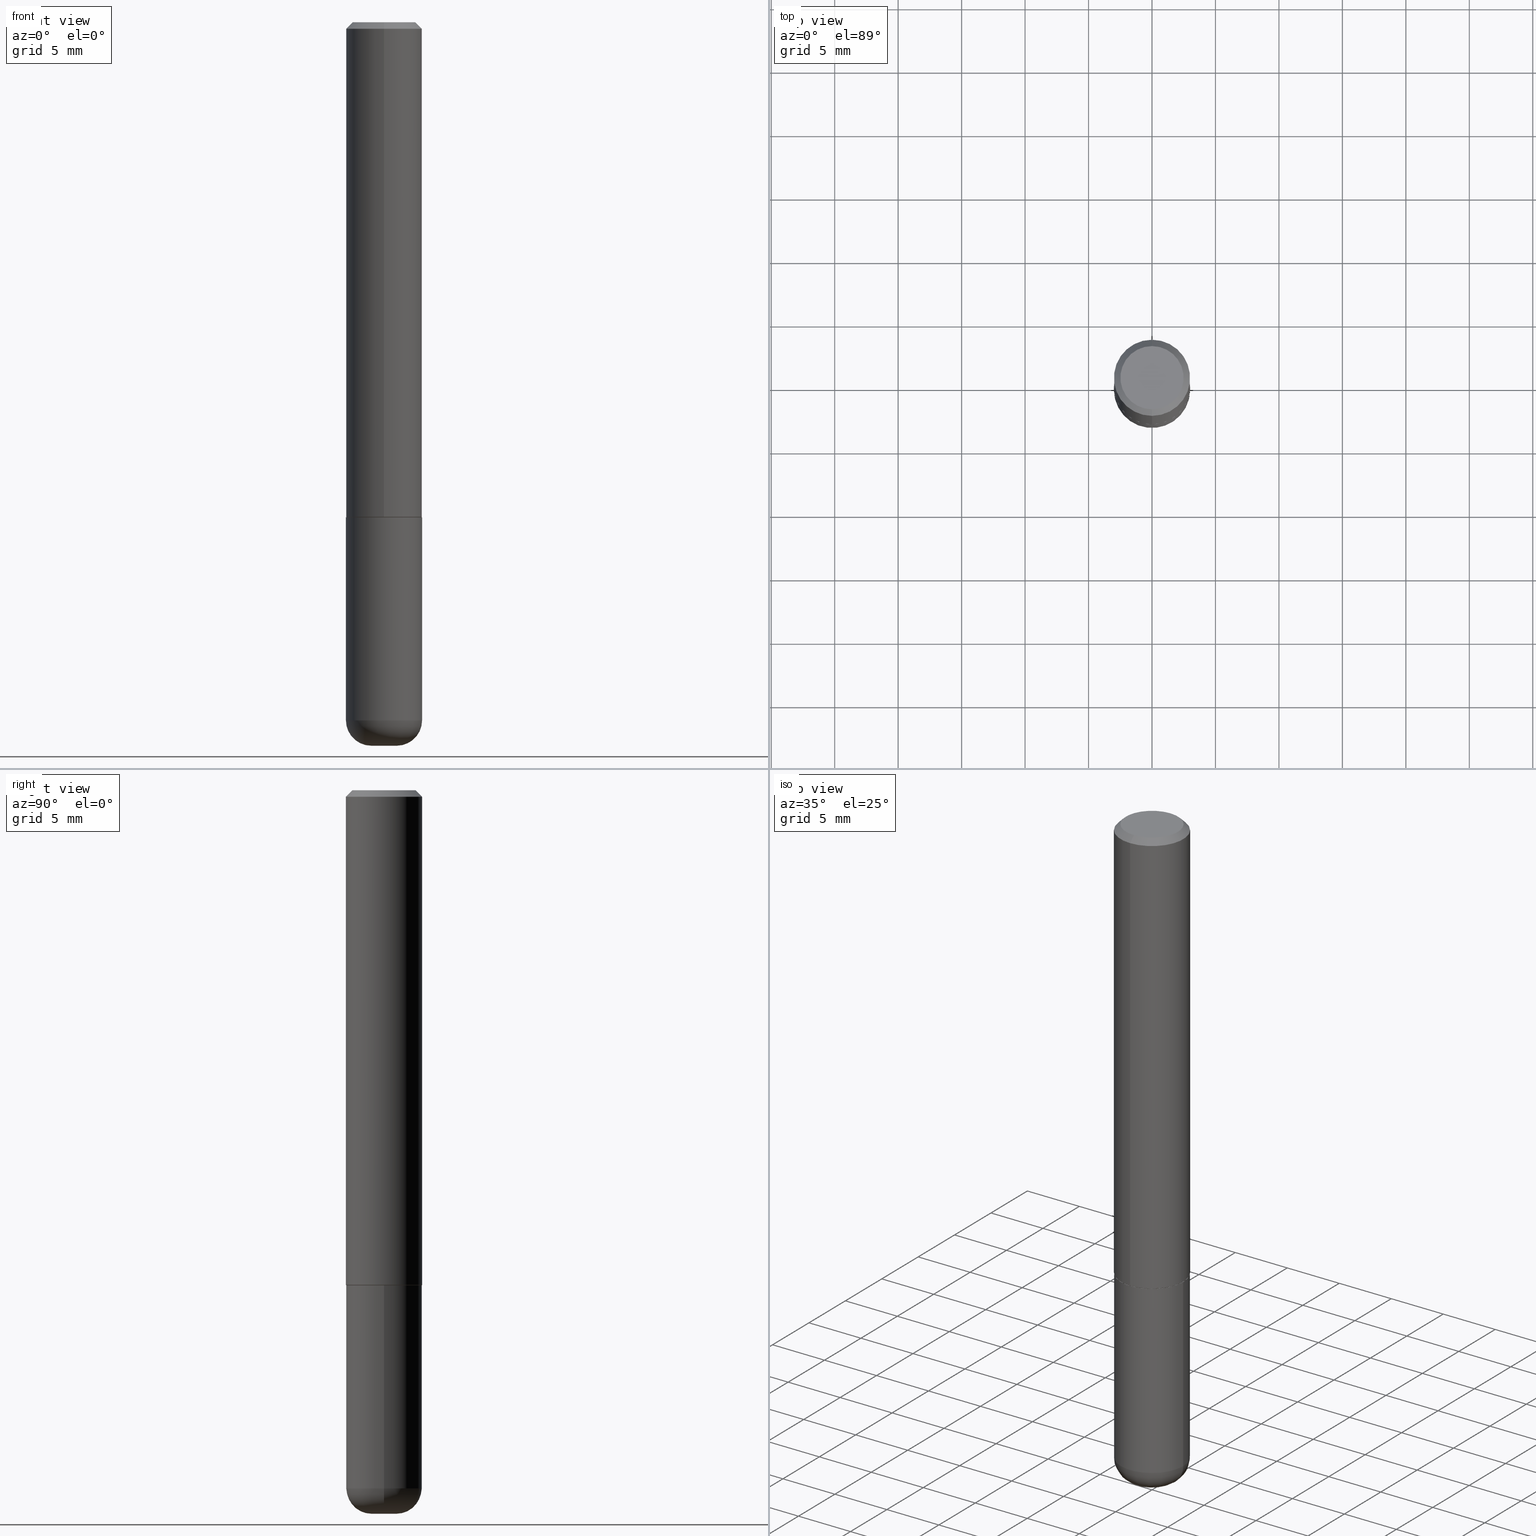
[diagram: canonical four-view strip — front | top / right | iso, engineering-drawing reading convention]
A machine part, canonical four-view strip (front | top / right | iso — engineering-drawing reading convention). The complete STEP part file that produces these views, byte-faithful:
ISO-10303-21;
HEADER;
FILE_DESCRIPTION (( 'STEP AP203' ),
    '1' );
FILE_NAME ('43475.STEP',
    '2024-03-04T04:51:33',
    ( '' ),
    ( '' ),
    'SwSTEP 2.0',
    'SolidWorks 2023',
    '' );
FILE_SCHEMA (( 'CONFIG_CONTROL_DESIGN' ));
ENDSEC;

DATA;
#1 = AXIS2_PLACEMENT_3D ( 'NONE', #17, #213, #9 ) ;
#2 = DIRECTION ( 'NONE',  ( -2.450009258804836628E-29, 3.484979152265221027E-15, 1.000000000000000000 ) ) ;
#3 = PERSON_AND_ORGANIZATION ( #193, #204 ) ;
#4 = CIRCLE ( 'NONE', #394, 0.1181000000000001493 ) ;
#5 = ADVANCED_FACE ( 'NONE', ( #255 ), #181, .F. ) ;
#6 = ORIENTED_EDGE ( 'NONE', *, *, #378, .F. ) ;
#7 = ADVANCED_FACE ( 'NONE', ( #79 ), #166, .T. ) ;
#8 = ORIENTED_EDGE ( 'NONE', *, *, #129, .T. ) ;
#9 = DIRECTION ( 'NONE',  ( -6.982962677686265922E-15, -1.000000000000000000, 3.484979152265221421E-15 ) ) ;
#10 = ORIENTED_EDGE ( 'NONE', *, *, #135, .F. ) ;
#11 = APPLICATION_PROTOCOL_DEFINITION ( 'international standard', 'config_control_design', 1994, #352 ) ;
#12 = APPROVAL_ROLE ( '' ) ;
#13 = CARTESIAN_POINT ( 'NONE',  ( 8.391509709326786901E-16, 0.1181000000000000660, -4.115760378825227923E-16 ) ) ;
#14 = VECTOR ( 'NONE', #195, 39.37007874015748143 ) ;
#15 = VERTEX_POINT ( 'NONE', #251 ) ;
#16 = ADVANCED_FACE ( 'NONE', ( #221 ), #214, .F. ) ;
#17 = CARTESIAN_POINT ( 'NONE',  ( 3.761744215968946405E-29, -5.350836990388019914E-15, -1.535399999999999876 ) ) ;
#18 = EDGE_LOOP ( 'NONE', ( #48, #316 ) ) ;
#19 = DIRECTION ( 'NONE',  ( 6.982962677686265922E-15, 1.000000000000000000, -3.469747663417777397E-15 ) ) ;
#20 = ORIENTED_EDGE ( 'NONE', *, *, #139, .F. ) ;
#21 = CARTESIAN_POINT ( 'NONE',  ( 8.320455435751148570E-16, 0.1170999999999946667, -1.535400000000000320 ) ) ;
#22 = EDGE_CURVE ( 'NONE', #313, #379, #172, .T. ) ;
#23 = TOROIDAL_SURFACE ( 'NONE', #100, 0.03939999999999999752, 0.07869999999999995055 ) ;
#24 = FACE_OUTER_BOUND ( 'NONE', #347, .T. ) ;
#25 = DIRECTION ( 'NONE',  ( 1.000000000000000000, -6.982962677686265133E-15, 0.000000000000000000 ) ) ;
#26 = CARTESIAN_POINT ( 'NONE',  ( 3.761744215968946405E-29, -5.350836990388019914E-15, -1.535399999999999876 ) ) ;
#27 = EDGE_CURVE ( 'NONE', #355, #411, #174, .T. ) ;
#28 = LINE ( 'NONE', #359, #249 ) ;
#29 = ADVANCED_BREP_SHAPE_REPRESENTATION ( '43475', ( #162, #301, #330 ), #186 ) ;
#30 = AXIS2_PLACEMENT_3D ( 'NONE', #343, #178, #47 ) ;
#31 = DIRECTION ( 'NONE',  ( 1.000000000000000000, -6.982962677686262766E-15, 0.000000000000000000 ) ) ;
#32 = COORDINATED_UNIVERSAL_TIME_OFFSET ( 5, 0, .BEHIND. ) ;
#33 = CALENDAR_DATE ( 2024, 3, 3 ) ;
#34 =( NAMED_UNIT ( * ) PLANE_ANGLE_UNIT ( ) SI_UNIT ( $, .RADIAN. ) );
#35 = ADVANCED_FACE ( 'NONE', ( #307 ), #228, .T. ) ;
#36 = CIRCLE ( 'NONE', #41, 0.1181000000000001493 ) ;
#37 = PRODUCT_DEFINITION_FORMATION_WITH_SPECIFIED_SOURCE ( 'ANY', '', #363, .NOT_KNOWN. ) ;
#38 = PERSON_AND_ORGANIZATION_ROLE ( 'design_supplier' ) ;
#39 = PLANE ( 'NONE',  #278 ) ;
#40 = COORDINATED_UNIVERSAL_TIME_OFFSET ( 5, 0, .BEHIND. ) ;
#41 = AXIS2_PLACEMENT_3D ( 'NONE', #151, #386, #225 ) ;
#42 = CARTESIAN_POINT ( 'NONE',  ( 3.761744215968946405E-29, -5.350836990388019914E-15, -1.535399999999999876 ) ) ;
#43 = CONICAL_SURFACE ( 'NONE', #293, 0.1171000000000000096, 0.7853981633974824739 ) ;
#44 = FACE_OUTER_BOUND ( 'NONE', #188, .T. ) ;
#45 = COORDINATED_UNIVERSAL_TIME_OFFSET ( 5, 0, .BEHIND. ) ;
#46 = DIRECTION ( 'NONE',  ( 6.982962677686265922E-15, 1.000000000000000000, -3.469747663417777397E-15 ) ) ;
#47 = DIRECTION ( 'NONE',  ( -1.000000000000000000, 6.982962677686265922E-15, -4.876176775795935793E-29 ) ) ;
#48 = ORIENTED_EDGE ( 'NONE', *, *, #378, .T. ) ;
#49 = ADVANCED_FACE ( 'NONE', ( #281 ), #285, .F. ) ;
#50 = CARTESIAN_POINT ( 'NONE',  ( 5.487876547960064752E-29, -7.835233272497902340E-15, -2.244099999999999984 ) ) ;
#51 = AXIS2_PLACEMENT_3D ( 'NONE', #86, #56, #264 ) ;
#52 = APPROVAL_PERSON_ORGANIZATION ( #3, #275, #130 ) ;
#53 = FACE_OUTER_BOUND ( 'NONE', #104, .T. ) ;
#54 = FACE_OUTER_BOUND ( 'NONE', #402, .T. ) ;
#55 = CC_DESIGN_PERSON_AND_ORGANIZATION_ASSIGNMENT ( #115, #382, ( #363 ) ) ;
#56 = DIRECTION ( 'NONE',  ( -2.450009258804836628E-29, 3.484979152265221027E-15, 1.000000000000000000 ) ) ;
#57 = VERTEX_POINT ( 'NONE', #70 ) ;
#58 = VECTOR ( 'NONE', #183, 39.37007874015748143 ) ;
#59 = VECTOR ( 'NONE', #168, 39.37007874015748143 ) ;
#60 = FACE_OUTER_BOUND ( 'NONE', #408, .T. ) ;
#61 = ORIENTED_EDGE ( 'NONE', *, *, #332, .F. ) ;
#62 = CYLINDRICAL_SURFACE ( 'NONE', #220, 0.1181000000000000105 ) ;
#63 = CARTESIAN_POINT ( 'NONE',  ( 8.172785934604017576E-45, -1.162525753552274938E-30, -3.335818387311265061E-16 ) ) ;
#64 = FACE_OUTER_BOUND ( 'NONE', #230, .T. ) ;
#65 = DIRECTION ( 'NONE',  ( 2.450009258804836628E-29, -3.484979152265221027E-15, -1.000000000000000000 ) ) ;
#66 = EDGE_CURVE ( 'NONE', #215, #137, #217, .T. ) ;
#67 = DATE_TIME_ROLE ( 'creation_date' ) ;
#68 = CIRCLE ( 'NONE', #415, 0.1181000000000000383 ) ;
#69 = COORDINATED_UNIVERSAL_TIME_OFFSET ( 5, 0, .BEHIND. ) ;
#70 = CARTESIAN_POINT ( 'NONE',  ( 0.1180999999999999689, -8.385141583365694108E-15, -2.165399999999999991 ) ) ;
#71 = VERTEX_POINT ( 'NONE', #346 ) ;
#72 = LOCAL_TIME ( 23, 51, 33.00000000000000000, #69 ) ;
#73 = ORIENTED_EDGE ( 'NONE', *, *, #348, .T. ) ;
#74 = ORIENTED_EDGE ( 'NONE', *, *, #284, .T. ) ;
#75 = ORIENTED_EDGE ( 'NONE', *, *, #150, .T. ) ;
#76 = DIRECTION ( 'NONE',  ( 2.450009258804836067E-29, -3.484979152265221421E-15, -1.000000000000000000 ) ) ;
#77 = ORIENTED_EDGE ( 'NONE', *, *, #361, .F. ) ;
#78 = CARTESIAN_POINT ( 'NONE',  ( 3.754772805016658760E-29, -5.360820447659765363E-15, -1.535399999999999876 ) ) ;
#79 = FACE_OUTER_BOUND ( 'NONE', #211, .T. ) ;
#80 = AXIS2_PLACEMENT_3D ( 'NONE', #26, #157, #91 ) ;
#81 = ORIENTED_EDGE ( 'NONE', *, *, #260, .T. ) ;
#82 = CONICAL_SURFACE ( 'NONE', #250, 0.1180999999999999966, 0.7853981633974463916 ) ;
#83 = EDGE_CURVE ( 'NONE', #15, #223, #292, .T. ) ;
#84 = APPROVAL_STATUS ( 'not_yet_approved' ) ;
#85 = DIRECTION ( 'NONE',  ( -6.982962677686265922E-15, -1.000000000000000000, 3.484979152265220632E-15 ) ) ;
#86 = CARTESIAN_POINT ( 'NONE',  ( 4.900018517609688844E-31, -6.969958304530464142E-17, -0.02000000000000006287 ) ) ;
#87 = EDGE_LOOP ( 'NONE', ( #110, #106 ) ) ;
#88 = VECTOR ( 'NONE', #243, 39.37007874015748854 ) ;
#89 = APPROVAL_PERSON_ORGANIZATION ( #254, #96, #404 ) ;
#90 = CARTESIAN_POINT ( 'NONE',  ( 0.000000000000000000, 0.000000000000000000, 0.000000000000000000 ) ) ;
#91 = DIRECTION ( 'NONE',  ( -6.982962677686266711E-15, -1.000000000000000000, 2.332918867347790727E-15 ) ) ;
#92 = CYLINDRICAL_SURFACE ( 'NONE', #322, 0.1181000000000000105 ) ;
#93 = DIRECTION ( 'NONE',  ( 1.000000000000000000, -6.982962677686261977E-15, 0.000000000000000000 ) ) ;
#94 = CARTESIAN_POINT ( 'NONE',  ( 5.295418152913295466E-29, -7.560453691130947423E-15, -2.165399999999999991 ) ) ;
#95 = AXIS2_PLACEMENT_3D ( 'NONE', #227, #224, #384 ) ;
#96 = APPROVAL ( #84, 'UNSPECIFIED' ) ;
#97 = APPROVAL_STATUS ( 'not_yet_approved' ) ;
#98 = DIRECTION ( 'NONE',  ( -2.450009258804836628E-29, 3.484979152265221027E-15, 1.000000000000000000 ) ) ;
#99 = EDGE_CURVE ( 'NONE', #368, #280, #68, .T. ) ;
#100 = AXIS2_PLACEMENT_3D ( 'NONE', #418, #297, #123 ) ;
#101 = ORIENTED_EDGE ( 'NONE', *, *, #135, .T. ) ;
#102 = PERSON_AND_ORGANIZATION ( #193, #204 ) ;
#103 = CARTESIAN_POINT ( 'NONE',  ( -8.177049295570242844E-16, -0.1171000000000053526, -1.535399999999999654 ) ) ;
#104 = EDGE_LOOP ( 'NONE', ( #342, #279, #179, #276 ) ) ;
#105 = DIRECTION ( 'NONE',  ( 6.982962677686265922E-15, 1.000000000000000000, -3.484979152265221421E-15 ) ) ;
#106 = ORIENTED_EDGE ( 'NONE', *, *, #284, .F. ) ;
#107 = AXIS2_PLACEMENT_3D ( 'NONE', #160, #2, #128 ) ;
#108 = DIRECTION ( 'NONE',  ( 2.450009258804836628E-29, -3.484979152265221027E-15, -1.000000000000000000 ) ) ;
#109 = AXIS2_PLACEMENT_3D ( 'NONE', #232, #268, #93 ) ;
#110 = ORIENTED_EDGE ( 'NONE', *, *, #83, .F. ) ;
#111 = DIRECTION ( 'NONE',  ( 1.000000000000000000, -6.982962677686267499E-15, 4.883557194083113462E-29 ) ) ;
#112 = ORIENTED_EDGE ( 'NONE', *, *, #150, .F. ) ;
#113 = DIRECTION ( 'NONE',  ( -2.450009258804836908E-29, 3.484979152265221421E-15, 1.000000000000000000 ) ) ;
#114 = ADVANCED_FACE ( 'NONE', ( #53 ), #43, .T. ) ;
#115 = PERSON_AND_ORGANIZATION ( #193, #204 ) ;
#116 = DIRECTION ( 'NONE',  ( -2.450009258804836628E-29, 3.484979152265221027E-15, 1.000000000000000000 ) ) ;
#117 = AXIS2_PLACEMENT_3D ( 'NONE', #401, #108, #46 ) ;
#118 = ORIENTED_EDGE ( 'NONE', *, *, #66, .T. ) ;
#119 = CARTESIAN_POINT ( 'NONE',  ( -8.246878922347114820E-16, -0.1181000000000054923, -1.534399999999999320 ) ) ;
#120 = DIRECTION ( 'NONE',  ( -2.450009258804836628E-29, 3.484979152265221027E-15, 1.000000000000000000 ) ) ;
#121 = ORIENTED_EDGE ( 'NONE', *, *, #319, .F. ) ;
#122 = DIRECTION ( 'NONE',  ( -2.445468806185136597E-29, 3.491481338843145583E-15, 1.000000000000000000 ) ) ;
#123 = DIRECTION ( 'NONE',  ( 1.000000000000000000, -6.982962677686267499E-15, 4.883557194083113462E-29 ) ) ;
#124 = EDGE_CURVE ( 'NONE', #215, #71, #143, .T. ) ;
#125 = CLOSED_SHELL ( 'NONE', ( #114, #237, #370, #7, #176, #291, #5, #49 ) ) ;
#126 = LOCAL_TIME ( 23, 51, 33.00000000000000000, #45 ) ;
#127 = CARTESIAN_POINT ( 'NONE',  ( -0.03939999999999999752, -7.280499853241468805E-15, -2.165399999999999991 ) ) ;
#128 = DIRECTION ( 'NONE',  ( -6.982962677686266711E-15, -1.000000000000000000, 2.332918867347790727E-15 ) ) ;
#129 = EDGE_CURVE ( 'NONE', #137, #355, #4, .T. ) ;
#130 = APPROVAL_ROLE ( '' ) ;
#131 = CARTESIAN_POINT ( 'NONE',  ( 7.548582654578867393E-16, 0.09810000000000035358, -6.754582935683457910E-16 ) ) ;
#132 = LINE ( 'NONE', #331, #14 ) ;
#133 = AXIS2_PLACEMENT_3D ( 'NONE', #50, #149, #210 ) ;
#134 = LOCAL_TIME ( 23, 51, 33.00000000000000000, #142 ) ;
#135 = EDGE_CURVE ( 'NONE', #355, #137, #36, .T. ) ;
#136 = CIRCLE ( 'NONE', #109, 0.07869999999999995055 ) ;
#137 = VERTEX_POINT ( 'NONE', #119 ) ;
#138 = DIRECTION ( 'NONE',  ( -4.851104656540954020E-15, -0.7071067811865485719, -0.7071067811865464625 ) ) ;
#139 = EDGE_CURVE ( 'NONE', #305, #57, #315, .T. ) ;
#140 = ORIENTED_EDGE ( 'NONE', *, *, #163, .T. ) ;
#141 = APPLICATION_CONTEXT ( 'configuration controlled 3d designs of mechanical parts and assemblies' ) ;
#142 = COORDINATED_UNIVERSAL_TIME_OFFSET ( 5, 0, .BEHIND. ) ;
#143 = CIRCLE ( 'NONE', #265, 0.1171000000000000096 ) ;
#144 = ORIENTED_EDGE ( 'NONE', *, *, #260, .F. ) ;
#145 = SECURITY_CLASSIFICATION ( '', '', #206 ) ;
#146 = ORIENTED_EDGE ( 'NONE', *, *, #83, .T. ) ;
#147 = PERSON_AND_ORGANIZATION ( #193, #204 ) ;
#148 = MECHANICAL_CONTEXT ( 'NONE', #141, 'mechanical' ) ;
#149 = DIRECTION ( 'NONE',  ( -2.445468806185136597E-29, 3.491481338843145583E-15, 1.000000000000000000 ) ) ;
#150 = EDGE_CURVE ( 'NONE', #411, #379, #365, .T. ) ;
#151 = CARTESIAN_POINT ( 'NONE',  ( 3.759294206710141458E-29, -5.347352011235754593E-15, -1.534399999999999986 ) ) ;
#152 = DIRECTION ( 'NONE',  ( 5.024295867788231995E-15, 0.7071067811865739960, 0.7071067811865208164 ) ) ;
#153 = CLOSED_SHELL ( 'NONE', ( #242, #35, #16, #302, #219, #356 ) ) ;
#154 = FACE_OUTER_BOUND ( 'NONE', #175, .T. ) ;
#155 = DIRECTION ( 'NONE',  ( 2.438088387897960049E-29, -3.491481338843145188E-15, -1.000000000000000000 ) ) ;
#156 = CC_DESIGN_PERSON_AND_ORGANIZATION_ASSIGNMENT ( #235, #334, ( #145 ) ) ;
#157 = DIRECTION ( 'NONE',  ( -2.450009258804836628E-29, 3.484979152265221027E-15, 1.000000000000000000 ) ) ;
#158 = DIRECTION ( 'NONE',  ( -2.445468806185136597E-29, 3.491481338843145583E-15, 1.000000000000000000 ) ) ;
#159 = AXIS2_PLACEMENT_3D ( 'NONE', #376, #76, #105 ) ;
#160 = CARTESIAN_POINT ( 'NONE',  ( 3.761744215968946405E-29, -5.350836990388019914E-15, -1.535399999999999876 ) ) ;
#161 = AXIS2_PLACEMENT_3D ( 'NONE', #300, #98, #335 ) ;
#162 = MANIFOLD_SOLID_BREP ( 'Body-Move/Copy2[1]', #153 ) ;
#163 = EDGE_CURVE ( 'NONE', #223, #305, #177, .T. ) ;
#164 = DATE_AND_TIME ( #33, #167 ) ;
#165 = CARTESIAN_POINT ( 'NONE',  ( -8.102248135368172434E-16, -0.1181000000000000660, -0.01999999999999965347 ) ) ;
#166 = CONICAL_SURFACE ( 'NONE', #117, 0.1180999999999999966, 0.7853981633974463916 ) ;
#167 = LOCAL_TIME ( 23, 51, 33.00000000000000000, #32 ) ;
#168 = DIRECTION ( 'NONE',  ( -2.450009258804836908E-29, 3.484979152265221421E-15, 1.000000000000000000 ) ) ;
#169 = DATE_AND_TIME ( #366, #126 ) ;
#170 = ORIENTED_EDGE ( 'NONE', *, *, #99, .F. ) ;
#171 = EDGE_CURVE ( 'NONE', #406, #411, #28, .T. ) ;
#172 = LINE ( 'NONE', #310, #407 ) ;
#173 = EDGE_LOOP ( 'NONE', ( #144, #340, #241, #77 ) ) ;
#174 = LINE ( 'NONE', #13, #380 ) ;
#175 = EDGE_LOOP ( 'NONE', ( #288, #81, #170, #371 ) ) ;
#176 = ADVANCED_FACE ( 'NONE', ( #60 ), #187, .T. ) ;
#177 = CIRCLE ( 'NONE', #283, 0.07869999999999995055 ) ;
#178 = DIRECTION ( 'NONE',  ( 2.438088387897960049E-29, -3.491481338843145188E-15, -1.000000000000000000 ) ) ;
#179 = ORIENTED_EDGE ( 'NONE', *, *, #129, .F. ) ;
#180 = CARTESIAN_POINT ( 'NONE',  ( 0.000000000000000000, 0.000000000000000000, 0.000000000000000000 ) ) ;
#181 = PLANE ( 'NONE',  #1 ) ;
#182 = DIRECTION ( 'NONE',  ( -2.445468806185136597E-29, 3.491481338843145583E-15, 1.000000000000000000 ) ) ;
#183 = DIRECTION ( 'NONE',  ( -2.445468806185136877E-29, 3.491481338843145188E-15, 1.000000000000000000 ) ) ;
#184 = CARTESIAN_POINT ( 'NONE',  ( -8.177049295570242844E-16, -0.1171000000000053526, -1.535399999999999654 ) ) ;
#185 = CIRCLE ( 'NONE', #277, 0.03940000000000000446 ) ;
#186 =( GEOMETRIC_REPRESENTATION_CONTEXT ( 3 ) GLOBAL_UNCERTAINTY_ASSIGNED_CONTEXT ( ( #385 ) ) GLOBAL_UNIT_ASSIGNED_CONTEXT ( ( #244, #34, #200 ) ) REPRESENTATION_CONTEXT ( 'NONE', 'WORKASPACE' ) );
#187 = CYLINDRICAL_SURFACE ( 'NONE', #212, 0.1181000000000000660 ) ;
#188 = EDGE_LOOP ( 'NONE', ( #252, #248, #256, #377 ) ) ;
#189 = PRODUCT_DEFINITION_SHAPE ( 'NONE', 'NONE',  #403 ) ;
#190 = DIRECTION ( 'NONE',  ( -2.445468806185136597E-29, 3.491481338843145583E-15, 1.000000000000000000 ) ) ;
#191 = DIRECTION ( 'NONE',  ( -2.450009258804836628E-29, 3.484979152265221027E-15, 1.000000000000000000 ) ) ;
#192 = CYLINDRICAL_SURFACE ( 'NONE', #239, 0.1181000000000000660 ) ;
#193 = PERSON ( 'UNSPECIFIED', 'UNSPECIFIED', 'UNSPECIFIED', ('UNSPECIFIED'), ('UNSPECIFIED'), ('UNSPECIFIED') ) ;
#194 = CIRCLE ( 'NONE', #388, 0.09810000000000035358 ) ;
#195 = DIRECTION ( 'NONE',  ( -2.445468806185136877E-29, 3.491481338843145188E-15, 1.000000000000000000 ) ) ;
#196 = CIRCLE ( 'NONE', #353, 0.1181000000000000383 ) ;
#197 = DESIGN_CONTEXT ( 'detailed design', #352, 'design' ) ;
#198 = DIRECTION ( 'NONE',  ( -2.445468806185136597E-29, 3.491481338843145583E-15, 1.000000000000000000 ) ) ;
#199 = APPROVAL_DATE_TIME ( #236, #275 ) ;
#200 =( NAMED_UNIT ( * ) SI_UNIT ( $, .STERADIAN. ) SOLID_ANGLE_UNIT ( ) );
#201 = CARTESIAN_POINT ( 'NONE',  ( 8.246878922347484598E-16, 0.1180999999999999273, -0.02000000000000047226 ) ) ;
#202 = EDGE_CURVE ( 'NONE', #379, #411, #338, .T. ) ;
#203 = AXIS2_PLACEMENT_3D ( 'NONE', #294, #158, #25 ) ;
#204 = ORGANIZATION ( 'UNSPECIFIED', 'UNSPECIFIED', '' ) ;
#205 = PERSON_AND_ORGANIZATION ( #193, #204 ) ;
#206 = SECURITY_CLASSIFICATION_LEVEL ( 'unclassified' ) ;
#207 = LENGTH_MEASURE_WITH_UNIT ( LENGTH_MEASURE( 0.02539999999999999897 ), #397 );
#208 = ORIENTED_EDGE ( 'NONE', *, *, #387, .T. ) ;
#209 = EDGE_CURVE ( 'NONE', #313, #406, #194, .T. ) ;
#210 = DIRECTION ( 'NONE',  ( 1.000000000000000000, -6.982962677686277755E-15, 0.000000000000000000 ) ) ;
#211 = EDGE_LOOP ( 'NONE', ( #318, #6, #413, #75 ) ) ;
#212 = AXIS2_PLACEMENT_3D ( 'NONE', #262, #414, #85 ) ;
#213 = DIRECTION ( 'NONE',  ( -2.450009258804836067E-29, 3.484979152265221421E-15, 1.000000000000000000 ) ) ;
#214 = PLANE ( 'NONE',  #30 ) ;
#215 = VERTEX_POINT ( 'NONE', #184 ) ;
#216 = DIRECTION ( 'NONE',  ( 0.000000000000000000, 0.000000000000000000, 1.000000000000000000 ) ) ;
#217 = LINE ( 'NONE', #103, #88 ) ;
#218 = ORIENTED_EDGE ( 'NONE', *, *, #27, .T. ) ;
#219 = ADVANCED_FACE ( 'NONE', ( #54 ), #23, .T. ) ;
#220 = AXIS2_PLACEMENT_3D ( 'NONE', #390, #190, #325 ) ;
#221 = FACE_OUTER_BOUND ( 'NONE', #314, .T. ) ;
#222 = APPROVAL_PERSON_ORGANIZATION ( #147, #417, #12 ) ;
#223 = VERTEX_POINT ( 'NONE', #267 ) ;
#224 = DIRECTION ( 'NONE',  ( -2.450009258804836628E-29, 3.484979152265221027E-15, 1.000000000000000000 ) ) ;
#225 = DIRECTION ( 'NONE',  ( -6.982962677686265922E-15, -1.000000000000000000, 4.626330217890363814E-15 ) ) ;
#226 = CC_DESIGN_DATE_AND_TIME_ASSIGNMENT ( #253, #308, ( #145 ) ) ;
#227 = CARTESIAN_POINT ( 'NONE',  ( 4.900018517609688844E-31, -6.969958304530464142E-17, -0.02000000000000006287 ) ) ;
#228 = TOROIDAL_SURFACE ( 'NONE', #306, 0.03939999999999999752, 0.07869999999999995055 ) ;
#229 = CC_DESIGN_SECURITY_CLASSIFICATION ( #145, ( #37 ) ) ;
#230 = EDGE_LOOP ( 'NONE', ( #245, #311, #118, #10 ) ) ;
#231 = LINE ( 'NONE', #358, #58 ) ;
#232 = CARTESIAN_POINT ( 'NONE',  ( 0.03939999999999999752, -7.835582420631785852E-15, -2.165399999999999991 ) ) ;
#233 = CC_DESIGN_DATE_AND_TIME_ASSIGNMENT ( #164, #67, ( #403 ) ) ;
#234 = DIRECTION ( 'NONE',  ( -6.982962677686266711E-15, -1.000000000000000000, 2.332918867347790727E-15 ) ) ;
#235 = PERSON_AND_ORGANIZATION ( #193, #204 ) ;
#236 = DATE_AND_TIME ( #395, #72 ) ;
#237 = ADVANCED_FACE ( 'NONE', ( #24 ), #192, .T. ) ;
#238 = LINE ( 'NONE', #364, #59 ) ;
#239 = AXIS2_PLACEMENT_3D ( 'NONE', #416, #389, #391 ) ;
#240 = PERSON_AND_ORGANIZATION_ROLE ( 'creator' ) ;
#241 = ORIENTED_EDGE ( 'NONE', *, *, #298, .T. ) ;
#242 = ADVANCED_FACE ( 'NONE', ( #154 ), #92, .T. ) ;
#243 = DIRECTION ( 'NONE',  ( -4.937700262164715281E-15, -0.7071067811865691111, 0.7071067811865257013 ) ) ;
#244 =( CONVERSION_BASED_UNIT ( 'INCH', #207 ) LENGTH_UNIT ( ) NAMED_UNIT ( #410 ) );
#245 = ORIENTED_EDGE ( 'NONE', *, *, #266, .F. ) ;
#246 = DATE_AND_TIME ( #375, #134 ) ;
#247 = CARTESIAN_POINT ( 'NONE',  ( 5.487876547960064752E-29, -7.835233272497902340E-15, -2.244099999999999984 ) ) ;
#248 = ORIENTED_EDGE ( 'NONE', *, *, #22, .T. ) ;
#249 = VECTOR ( 'NONE', #383, 39.37007874015748143 ) ;
#250 = AXIS2_PLACEMENT_3D ( 'NONE', #261, #65, #19 ) ;
#251 = CARTESIAN_POINT ( 'NONE',  ( 0.03940000000000000446, -8.110362001998742346E-15, -2.244099999999999984 ) ) ;
#252 = ORIENTED_EDGE ( 'NONE', *, *, #209, .F. ) ;
#253 = DATE_AND_TIME ( #303, #372 ) ;
#254 = PERSON_AND_ORGANIZATION ( #193, #204 ) ;
#255 = FACE_OUTER_BOUND ( 'NONE', #405, .T. ) ;
#256 = ORIENTED_EDGE ( 'NONE', *, *, #202, .T. ) ;
#257 = DIRECTION ( 'NONE',  ( -2.445468806185136597E-29, 3.491481338843145583E-15, 1.000000000000000000 ) ) ;
#258 = DIRECTION ( 'NONE',  ( -6.982962677686265922E-15, -1.000000000000000000, 3.484979152265220632E-15 ) ) ;
#259 = CC_DESIGN_APPROVAL ( #96, ( #403 ) ) ;
#260 = EDGE_CURVE ( 'NONE', #305, #280, #231, .T. ) ;
#261 = CARTESIAN_POINT ( 'NONE',  ( 4.900018517609688844E-31, -6.969958304530464142E-17, -0.02000000000000006287 ) ) ;
#262 = CARTESIAN_POINT ( 'NONE',  ( 0.000000000000000000, 0.000000000000000000, 0.000000000000000000 ) ) ;
#263 = CARTESIAN_POINT ( 'NONE',  ( 3.761744215968946405E-29, -5.350836990388019914E-15, -1.535399999999999876 ) ) ;
#264 = DIRECTION ( 'NONE',  ( -6.982962677686265922E-15, -1.000000000000000000, 3.469747663417777397E-15 ) ) ;
#265 = AXIS2_PLACEMENT_3D ( 'NONE', #263, #354, #234 ) ;
#266 = EDGE_CURVE ( 'NONE', #71, #355, #320, .T. ) ;
#267 = CARTESIAN_POINT ( 'NONE',  ( -0.03940000000000000446, -7.138291077403347657E-15, -2.244099999999999984 ) ) ;
#268 = DIRECTION ( 'NONE',  ( -6.982962677686266711E-15, -1.000000000000000000, 3.491481338843145583E-15 ) ) ;
#269 = FACE_OUTER_BOUND ( 'NONE', #173, .T. ) ;
#270 = PERSON_AND_ORGANIZATION ( #193, #204 ) ;
#271 = APPLICATION_PROTOCOL_DEFINITION ( 'international standard', 'config_control_design', 1994, #141 ) ;
#272 = VECTOR ( 'NONE', #152, 39.37007874015748854 ) ;
#273 = APPROVAL_DATE_TIME ( #169, #417 ) ;
#274 = SHAPE_DEFINITION_REPRESENTATION ( #189, #29 ) ;
#275 = APPROVAL ( #97, 'UNSPECIFIED' ) ;
#276 = ORIENTED_EDGE ( 'NONE', *, *, #66, .F. ) ;
#277 = AXIS2_PLACEMENT_3D ( 'NONE', #323, #122, #357 ) ;
#278 = AXIS2_PLACEMENT_3D ( 'NONE', #247, #155, #304 ) ;
#279 = ORIENTED_EDGE ( 'NONE', *, *, #266, .T. ) ;
#280 = VERTEX_POINT ( 'NONE', #336 ) ;
#281 = FACE_OUTER_BOUND ( 'NONE', #18, .T. ) ;
#282 = APPROVAL_DATE_TIME ( #246, #96 ) ;
#283 = AXIS2_PLACEMENT_3D ( 'NONE', #127, #351, #327 ) ;
#284 = EDGE_CURVE ( 'NONE', #223, #15, #185, .T. ) ;
#285 = PLANE ( 'NONE',  #159 ) ;
#286 = ORIENTED_EDGE ( 'NONE', *, *, #99, .T. ) ;
#287 = CARTESIAN_POINT ( 'NONE',  ( 3.754772805016658760E-29, -5.360820447659765363E-15, -1.535399999999999876 ) ) ;
#288 = ORIENTED_EDGE ( 'NONE', *, *, #332, .T. ) ;
#289 = APPROVAL_STATUS ( 'not_yet_approved' ) ;
#290 = DIRECTION ( 'NONE',  ( -6.982962677686265922E-15, -1.000000000000000000, 4.626330217890363814E-15 ) ) ;
#291 = ADVANCED_FACE ( 'NONE', ( #64 ), #299, .T. ) ;
#292 = CIRCLE ( 'NONE', #133, 0.03940000000000000446 ) ;
#293 = AXIS2_PLACEMENT_3D ( 'NONE', #42, #120, #295 ) ;
#294 = CARTESIAN_POINT ( 'NONE',  ( 5.295418152913295466E-29, -7.560453691130947423E-15, -2.165399999999999991 ) ) ;
#295 = DIRECTION ( 'NONE',  ( -6.982962677686266711E-15, -1.000000000000000000, 2.332918867347790727E-15 ) ) ;
#296 = FACE_OUTER_BOUND ( 'NONE', #87, .T. ) ;
#297 = DIRECTION ( 'NONE',  ( -2.445468806185136597E-29, 3.491481338843145583E-15, 1.000000000000000000 ) ) ;
#298 = EDGE_CURVE ( 'NONE', #57, #368, #132, .T. ) ;
#299 = CONICAL_SURFACE ( 'NONE', #107, 0.1171000000000000096, 0.7853981633974824739 ) ;
#300 = CARTESIAN_POINT ( 'NONE',  ( 8.172785934604017576E-45, -1.162525753552274938E-30, -3.335818387311265061E-16 ) ) ;
#301 = MANIFOLD_SOLID_BREP ( 'Body-Move/Copy2[2]', #125 ) ;
#302 = ADVANCED_FACE ( 'NONE', ( #269 ), #62, .T. ) ;
#303 = CALENDAR_DATE ( 2024, 3, 3 ) ;
#304 = DIRECTION ( 'NONE',  ( -1.000000000000000000, 6.982962677686265922E-15, -4.876176775795935793E-29 ) ) ;
#305 = VERTEX_POINT ( 'NONE', #393 ) ;
#306 = AXIS2_PLACEMENT_3D ( 'NONE', #337, #409, #111 ) ;
#307 = FACE_OUTER_BOUND ( 'NONE', #321, .T. ) ;
#308 = DATE_TIME_ROLE ( 'classification_date' ) ;
#309 = DIRECTION ( 'NONE',  ( 1.000000000000000000, 0.000000000000000000, 0.000000000000000000 ) ) ;
#310 = CARTESIAN_POINT ( 'NONE',  ( -8.102248135368172434E-16, -0.1181000000000000660, -0.01999999999999965347 ) ) ;
#311 = ORIENTED_EDGE ( 'NONE', *, *, #319, .T. ) ;
#312 = CC_DESIGN_PERSON_AND_ORGANIZATION_ASSIGNMENT ( #270, #38, ( #37 ) ) ;
#313 = VERTEX_POINT ( 'NONE', #392 ) ;
#314 = EDGE_LOOP ( 'NONE', ( #286, #412 ) ) ;
#315 = CIRCLE ( 'NONE', #203, 0.1180999999999999966 ) ;
#316 = ORIENTED_EDGE ( 'NONE', *, *, #209, .T. ) ;
#317 = ORIENTED_EDGE ( 'NONE', *, *, #348, .F. ) ;
#318 = ORIENTED_EDGE ( 'NONE', *, *, #22, .F. ) ;
#319 = EDGE_CURVE ( 'NONE', #71, #215, #398, .T. ) ;
#320 = LINE ( 'NONE', #21, #272 ) ;
#321 = EDGE_LOOP ( 'NONE', ( #146, #140, #61, #317 ) ) ;
#322 = AXIS2_PLACEMENT_3D ( 'NONE', #90, #328, #350 ) ;
#323 = CARTESIAN_POINT ( 'NONE',  ( 5.487876547960064752E-29, -7.835233272497902340E-15, -2.244099999999999984 ) ) ;
#324 = CARTESIAN_POINT ( 'NONE',  ( 3.759294206710141458E-29, -5.347352011235754593E-15, -1.534399999999999986 ) ) ;
#325 = DIRECTION ( 'NONE',  ( 1.000000000000000000, -6.982962677686267499E-15, 4.876176775795936353E-29 ) ) ;
#326 = CC_DESIGN_PERSON_AND_ORGANIZATION_ASSIGNMENT ( #205, #240, ( #37 ) ) ;
#327 = DIRECTION ( 'NONE',  ( -1.000000000000000000, 7.105427357600997126E-15, 0.000000000000000000 ) ) ;
#328 = DIRECTION ( 'NONE',  ( -2.445468806185136597E-29, 3.491481338843145583E-15, 1.000000000000000000 ) ) ;
#329 = CIRCLE ( 'NONE', #381, 0.1180999999999999966 ) ;
#330 = AXIS2_PLACEMENT_3D ( 'NONE', #180, #216, #309 ) ;
#331 = CARTESIAN_POINT ( 'NONE',  ( 0.1181000000000000105, -8.246878922347482626E-16, 5.758764772215001141E-30 ) ) ;
#332 = EDGE_CURVE ( 'NONE', #57, #305, #329, .T. ) ;
#333 = CC_DESIGN_APPROVAL ( #275, ( #37 ) ) ;
#334 = PERSON_AND_ORGANIZATION_ROLE ( 'classification_officer' ) ;
#335 = DIRECTION ( 'NONE',  ( -6.982962677686265922E-15, -1.000000000000000000, 3.484979152265220632E-15 ) ) ;
#336 = CARTESIAN_POINT ( 'NONE',  ( -0.1181000000000000522, -5.621486098462677801E-15, -1.535399999999999876 ) ) ;
#337 = CARTESIAN_POINT ( 'NONE',  ( 5.295418152913295466E-29, -7.560453691130947423E-15, -2.165399999999999991 ) ) ;
#338 = CIRCLE ( 'NONE', #51, 0.1180999999999999966 ) ;
#339 = ORIENTED_EDGE ( 'NONE', *, *, #27, .F. ) ;
#340 = ORIENTED_EDGE ( 'NONE', *, *, #139, .T. ) ;
#341 = PRODUCT_RELATED_PRODUCT_CATEGORY ( 'detail', '', ( #363 ) ) ;
#342 = ORIENTED_EDGE ( 'NONE', *, *, #124, .T. ) ;
#343 = CARTESIAN_POINT ( 'NONE',  ( 3.754772805016658760E-29, -5.360820447659765363E-15, -1.535399999999999876 ) ) ;
#344 = ORIENTED_EDGE ( 'NONE', *, *, #202, .F. ) ;
#345 = CARTESIAN_POINT ( 'NONE',  ( 0.1181000000000000383, -6.185508339894513625E-15, -1.535399999999999876 ) ) ;
#346 = CARTESIAN_POINT ( 'NONE',  ( 8.355982572539158541E-16, 0.1170999999999946667, -1.535400000000000320 ) ) ;
#347 = EDGE_LOOP ( 'NONE', ( #8, #218, #344, #373 ) ) ;
#348 = EDGE_CURVE ( 'NONE', #15, #57, #136, .T. ) ;
#349 = DIRECTION ( 'NONE',  ( 1.000000000000000000, -6.982962677686262766E-15, 0.000000000000000000 ) ) ;
#350 = DIRECTION ( 'NONE',  ( 1.000000000000000000, -6.982962677686267499E-15, 4.876176775795936353E-29 ) ) ;
#351 = DIRECTION ( 'NONE',  ( 7.105427357601001859E-15, 1.000000000000000000, -3.491481338843145583E-15 ) ) ;
#352 = APPLICATION_CONTEXT ( 'configuration controlled 3d designs of mechanical parts and assemblies' ) ;
#353 = AXIS2_PLACEMENT_3D ( 'NONE', #78, #182, #31 ) ;
#354 = DIRECTION ( 'NONE',  ( -2.450009258804836628E-29, 3.484979152265221027E-15, 1.000000000000000000 ) ) ;
#355 = VERTEX_POINT ( 'NONE', #369 ) ;
#356 = ADVANCED_FACE ( 'NONE', ( #296 ), #39, .T. ) ;
#357 = DIRECTION ( 'NONE',  ( 1.000000000000000000, -6.982962677686277755E-15, 0.000000000000000000 ) ) ;
#358 = CARTESIAN_POINT ( 'NONE',  ( -0.1181000000000000105, 8.391509709326783943E-16, -5.809262341591044484E-30 ) ) ;
#359 = CARTESIAN_POINT ( 'NONE',  ( 8.246878922347484598E-16, 0.1180999999999999273, -0.02000000000000047226 ) ) ;
#360 = DIRECTION ( 'NONE',  ( 1.000000000000000000, -6.982962677686265133E-15, 0.000000000000000000 ) ) ;
#361 = EDGE_CURVE ( 'NONE', #280, #368, #196, .T. ) ;
#362 = CIRCLE ( 'NONE', #161, 0.09810000000000035358 ) ;
#363 = PRODUCT ( '43475', '43475', '', ( #148 ) ) ;
#364 = CARTESIAN_POINT ( 'NONE',  ( -8.246878922347484598E-16, -0.1181000000000000660, 4.115760378825227923E-16 ) ) ;
#365 = CIRCLE ( 'NONE', #95, 0.1180999999999999966 ) ;
#366 = CALENDAR_DATE ( 2024, 3, 3 ) ;
#367 = PERSON_AND_ORGANIZATION_ROLE ( 'creator' ) ;
#368 = VERTEX_POINT ( 'NONE', #345 ) ;
#369 = CARTESIAN_POINT ( 'NONE',  ( 8.391509709326979186E-16, 0.1180999999999948064, -1.534400000000000430 ) ) ;
#370 = ADVANCED_FACE ( 'NONE', ( #44 ), #82, .T. ) ;
#371 = ORIENTED_EDGE ( 'NONE', *, *, #298, .F. ) ;
#372 = LOCAL_TIME ( 23, 51, 33.00000000000000000, #40 ) ;
#373 = ORIENTED_EDGE ( 'NONE', *, *, #387, .F. ) ;
#374 = ORIENTED_EDGE ( 'NONE', *, *, #163, .F. ) ;
#375 = CALENDAR_DATE ( 2024, 3, 3 ) ;
#376 = CARTESIAN_POINT ( 'NONE',  ( 6.850286386810251175E-16, 0.09810000000000035358, -5.086673742027826119E-16 ) ) ;
#377 = ORIENTED_EDGE ( 'NONE', *, *, #171, .F. ) ;
#378 = EDGE_CURVE ( 'NONE', #406, #313, #362, .T. ) ;
#379 = VERTEX_POINT ( 'NONE', #165 ) ;
#380 = VECTOR ( 'NONE', #113, 39.37007874015748143 ) ;
#381 = AXIS2_PLACEMENT_3D ( 'NONE', #94, #198, #360 ) ;
#382 = PERSON_AND_ORGANIZATION_ROLE ( 'design_owner' ) ;
#383 = DIRECTION ( 'NONE',  ( 4.937700262164537787E-15, 0.7071067811865436870, -0.7071067811865513475 ) ) ;
#384 = DIRECTION ( 'NONE',  ( -6.982962677686265922E-15, -1.000000000000000000, 3.469747663417777397E-15 ) ) ;
#385 = UNCERTAINTY_MEASURE_WITH_UNIT (LENGTH_MEASURE( 1.000000000000000082E-05 ), #244, 'distance_accuracy_value', 'NONE');
#386 = DIRECTION ( 'NONE',  ( -2.450009258804836628E-29, 3.484979152265221027E-15, 1.000000000000000000 ) ) ;
#387 = EDGE_CURVE ( 'NONE', #137, #379, #238, .T. ) ;
#388 = AXIS2_PLACEMENT_3D ( 'NONE', #63, #116, #258 ) ;
#389 = DIRECTION ( 'NONE',  ( -2.450009258804836628E-29, 3.484979152265221027E-15, 1.000000000000000000 ) ) ;
#390 = CARTESIAN_POINT ( 'NONE',  ( 0.000000000000000000, 0.000000000000000000, 0.000000000000000000 ) ) ;
#391 = DIRECTION ( 'NONE',  ( -6.982962677686265922E-15, -1.000000000000000000, 3.484979152265220632E-15 ) ) ;
#392 = CARTESIAN_POINT ( 'NONE',  ( -7.416198335591033911E-16, -0.09810000000000035358, 8.294616106092906705E-18 ) ) ;
#393 = CARTESIAN_POINT ( 'NONE',  ( -0.1180999999999999689, -6.721302720198270015E-15, -2.165399999999999991 ) ) ;
#394 = AXIS2_PLACEMENT_3D ( 'NONE', #324, #191, #290 ) ;
#395 = CALENDAR_DATE ( 2024, 3, 3 ) ;
#396 = CC_DESIGN_PERSON_AND_ORGANIZATION_ASSIGNMENT ( #102, #367, ( #403 ) ) ;
#397 =( LENGTH_UNIT ( ) NAMED_UNIT ( * ) SI_UNIT ( $, .METRE. ) );
#398 = CIRCLE ( 'NONE', #80, 0.1171000000000000096 ) ;
#399 = CC_DESIGN_APPROVAL ( #417, ( #145 ) ) ;
#400 = ORIENTED_EDGE ( 'NONE', *, *, #124, .F. ) ;
#401 = CARTESIAN_POINT ( 'NONE',  ( 4.900018517609688844E-31, -6.969958304530464142E-17, -0.02000000000000006287 ) ) ;
#402 = EDGE_LOOP ( 'NONE', ( #374, #74, #73, #20 ) ) ;
#403 = PRODUCT_DEFINITION ( 'UNKNOWN', '', #37, #197 ) ;
#404 = APPROVAL_ROLE ( '' ) ;
#405 = EDGE_LOOP ( 'NONE', ( #400, #121 ) ) ;
#406 = VERTEX_POINT ( 'NONE', #131 ) ;
#407 = VECTOR ( 'NONE', #138, 39.37007874015748143 ) ;
#408 = EDGE_LOOP ( 'NONE', ( #339, #101, #208, #112 ) ) ;
#409 = DIRECTION ( 'NONE',  ( -2.445468806185136597E-29, 3.491481338843145583E-15, 1.000000000000000000 ) ) ;
#410 = DIMENSIONAL_EXPONENTS ( 1.000000000000000000, 0.000000000000000000, 0.000000000000000000, 0.000000000000000000, 0.000000000000000000, 0.000000000000000000, 0.000000000000000000 ) ;
#411 = VERTEX_POINT ( 'NONE', #201 ) ;
#412 = ORIENTED_EDGE ( 'NONE', *, *, #361, .T. ) ;
#413 = ORIENTED_EDGE ( 'NONE', *, *, #171, .T. ) ;
#414 = DIRECTION ( 'NONE',  ( -2.450009258804836628E-29, 3.484979152265221027E-15, 1.000000000000000000 ) ) ;
#415 = AXIS2_PLACEMENT_3D ( 'NONE', #287, #257, #349 ) ;
#416 = CARTESIAN_POINT ( 'NONE',  ( 0.000000000000000000, 0.000000000000000000, 0.000000000000000000 ) ) ;
#417 = APPROVAL ( #289, 'UNSPECIFIED' ) ;
#418 = CARTESIAN_POINT ( 'NONE',  ( 5.295418152913295466E-29, -7.560453691130947423E-15, -2.165399999999999991 ) ) ;
ENDSEC;
END-ISO-10303-21;
